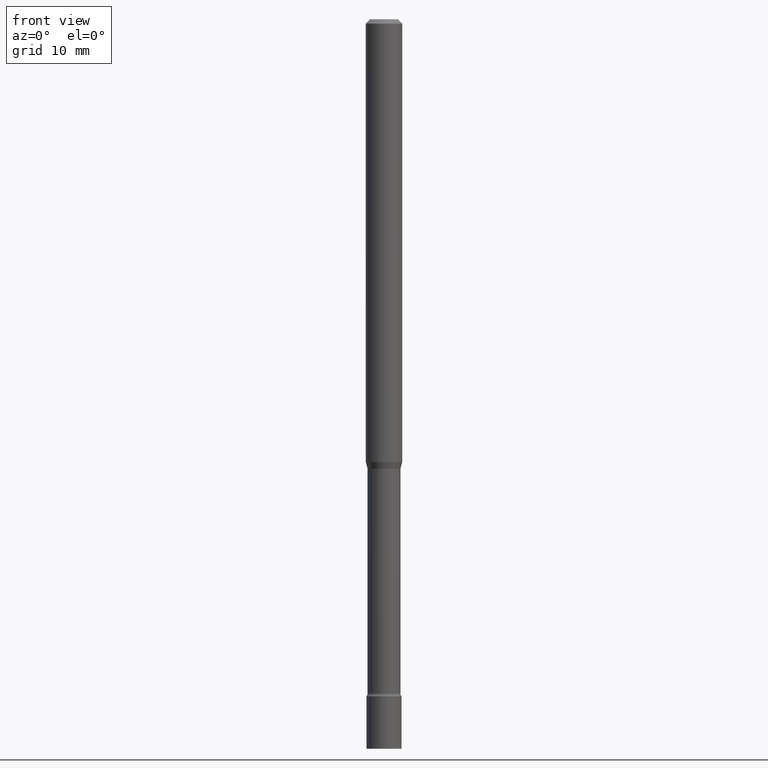
[diagram: clean part render]
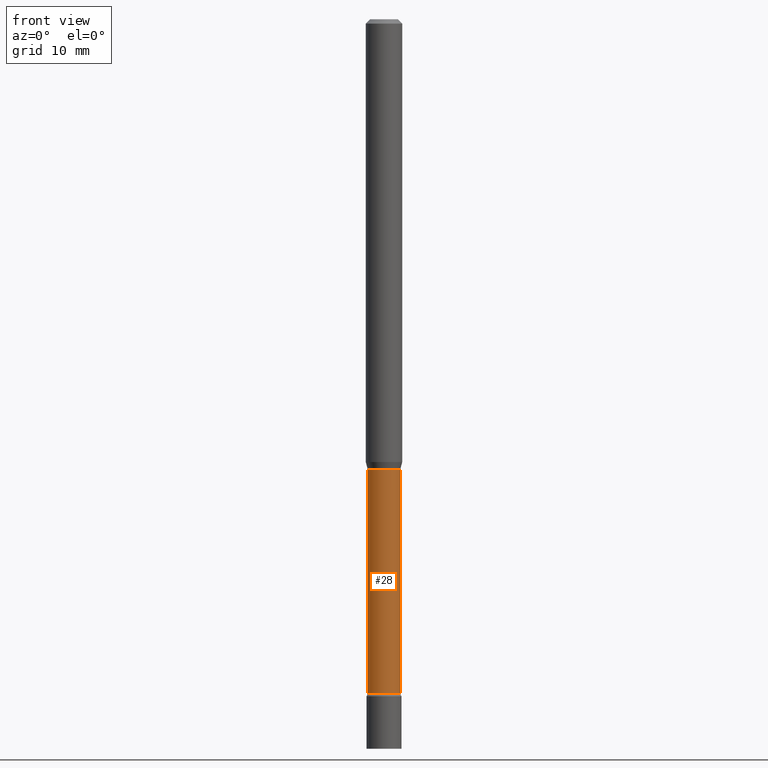
[diagram: same view with one face highlighted and labeled with its STEP entity id]
A machine part, front view. The second image highlights one B-rep face of the part: STEP entity #28.
In plain terms, the highlighted cylindrical surface (edge-blend (fillet) strip) has radius 1.4326 mm, axis along (-0, 0, 1).
Its self-contained STEP definition (entity closure, byte-faithful):
#3 = CARTESIAN_POINT ( 'NONE',  ( 3.770851242666705328E-29, -5.383776195396521708E-15, -1.541974787463811003 ) ) ;
#5 = VERTEX_POINT ( 'NONE', #407 ) ;
#7 = VERTEX_POINT ( 'NONE', #35 ) ;
#18 = FACE_OUTER_BOUND ( 'NONE', #338, .T. ) ;
#26 = CIRCLE ( 'NONE', #302, 0.05639999999999999181 ) ;
#28 = ADVANCED_FACE ( 'NONE', ( #18 ), #506, .T. ) ;
#34 = AXIS2_PLACEMENT_3D ( 'NONE', #39, #178, #416 ) ;
#35 = CARTESIAN_POINT ( 'NONE',  ( 0.05639999999999999181, -5.777615290418026324E-15, -1.541974787463811003 ) ) ;
#37 = EDGE_CURVE ( 'NONE', #5, #241, #341, .T. ) ;
#39 = CARTESIAN_POINT ( 'NONE',  ( 0.000000000000000000, 0.000000000000000000, 0.000000000000000000 ) ) ;
#81 = DIRECTION ( 'NONE',  ( 1.000000000000000000, -6.982962677686261977E-15, 0.000000000000000000 ) ) ;
#90 = EDGE_CURVE ( 'NONE', #241, #7, #331, .T. ) ;
#97 = DIRECTION ( 'NONE',  ( -2.445468806185136877E-29, 3.491481338843145188E-15, 1.000000000000000000 ) ) ;
#101 = AXIS2_PLACEMENT_3D ( 'NONE', #140, #235, #189 ) ;
#103 = DIRECTION ( 'NONE',  ( -2.445468806185136877E-29, 3.491481338843145188E-15, 1.000000000000000000 ) ) ;
#140 = CARTESIAN_POINT ( 'NONE',  ( 5.649647131350973229E-29, -8.066198791933100712E-15, -2.310251153914436806 ) ) ;
#148 = VECTOR ( 'NONE', #97, 39.37007874015748143 ) ;
#165 = VERTEX_POINT ( 'NONE', #210 ) ;
#178 = DIRECTION ( 'NONE',  ( -2.445468806185136597E-29, 3.491481338843145583E-15, 1.000000000000000000 ) ) ;
#189 = DIRECTION ( 'NONE',  ( 1.000000000000000000, -6.982962677686259611E-15, 0.000000000000000000 ) ) ;
#210 = CARTESIAN_POINT ( 'NONE',  ( -0.05639999999999999181, -6.324241390696113876E-15, -1.541974787463811003 ) ) ;
#230 = ORIENTED_EDGE ( 'NONE', *, *, #37, .T. ) ;
#235 = DIRECTION ( 'NONE',  ( -2.445468806185136597E-29, 3.491481338843145583E-15, 1.000000000000000000 ) ) ;
#239 = EDGE_CURVE ( 'NONE', #5, #165, #428, .T. ) ;
#241 = VERTEX_POINT ( 'NONE', #270 ) ;
#265 = ORIENTED_EDGE ( 'NONE', *, *, #90, .T. ) ;
#270 = CARTESIAN_POINT ( 'NONE',  ( 0.05640000000000001262, -8.460037886954606117E-15, -2.310251153914436806 ) ) ;
#302 = AXIS2_PLACEMENT_3D ( 'NONE', #3, #330, #81 ) ;
#326 = VECTOR ( 'NONE', #103, 39.37007874015748143 ) ;
#330 = DIRECTION ( 'NONE',  ( -2.445468806185136597E-29, 3.491481338843145583E-15, 1.000000000000000000 ) ) ;
#331 = LINE ( 'NONE', #481, #326 ) ;
#338 = EDGE_LOOP ( 'NONE', ( #443, #230, #265, #399 ) ) ;
#341 = CIRCLE ( 'NONE', #101, 0.05640000000000001262 ) ;
#399 = ORIENTED_EDGE ( 'NONE', *, *, #454, .F. ) ;
#407 = CARTESIAN_POINT ( 'NONE',  ( -0.05640000000000001262, -7.669681876812221834E-15, -2.310251153914436806 ) ) ;
#416 = DIRECTION ( 'NONE',  ( 1.000000000000000000, -6.982962677686265922E-15, 4.876176775795935793E-29 ) ) ;
#428 = LINE ( 'NONE', #500, #148 ) ;
#443 = ORIENTED_EDGE ( 'NONE', *, *, #239, .F. ) ;
#454 = EDGE_CURVE ( 'NONE', #165, #7, #26, .T. ) ;
#481 = CARTESIAN_POINT ( 'NONE',  ( 0.05640000000000000568, -3.938390950215054539E-16, 2.750163701548907995E-30 ) ) ;
#500 = CARTESIAN_POINT ( 'NONE',  ( -0.05640000000000000568, 4.007461029686965452E-16, -2.774279390903766864E-30 ) ) ;
#506 = CYLINDRICAL_SURFACE ( 'NONE', #34, 0.05640000000000000568 ) ;